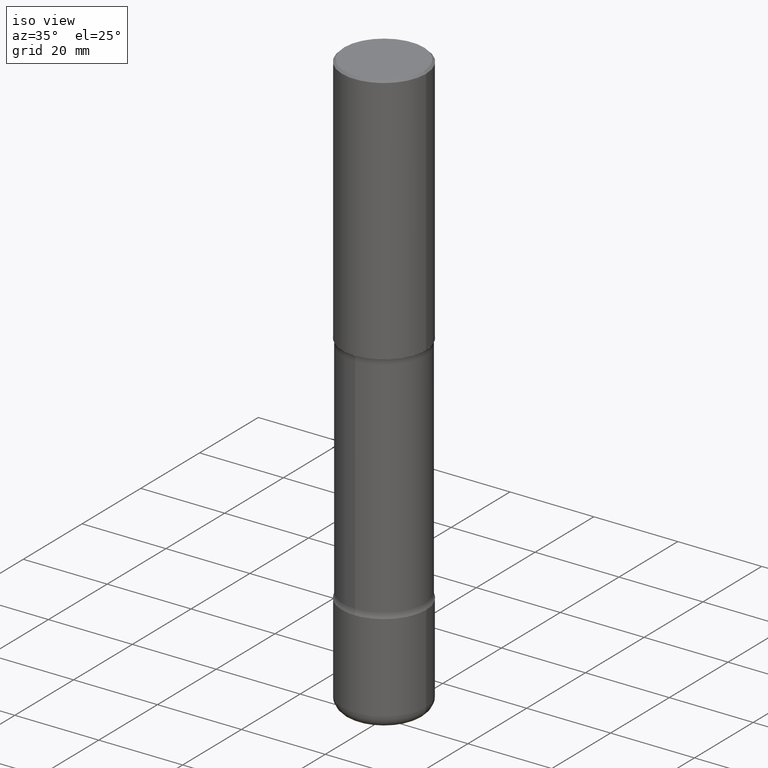
[diagram: clean part render]
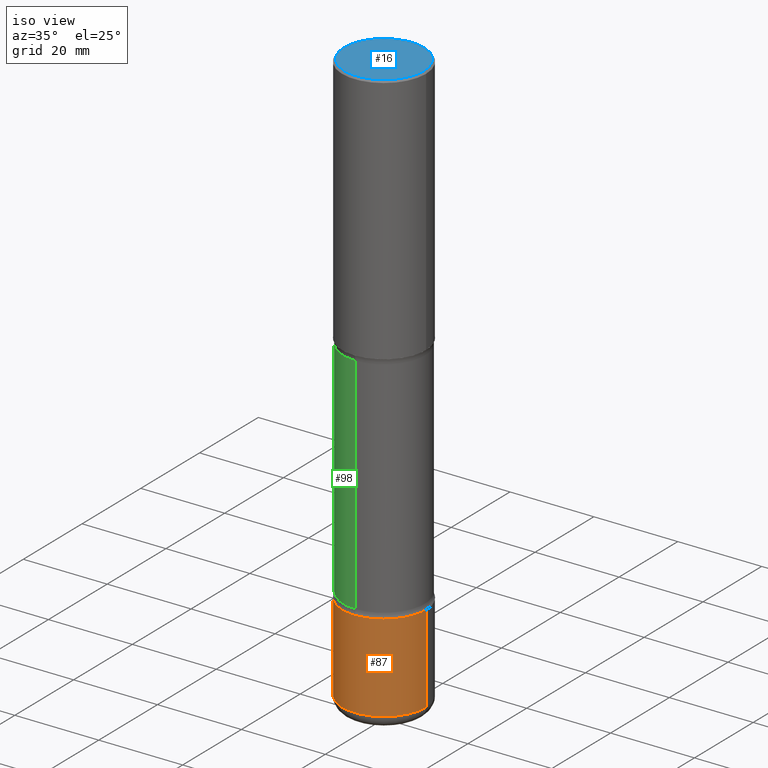
[diagram: same view with three faces highlighted in distinct colors, each labeled with its STEP entity id]
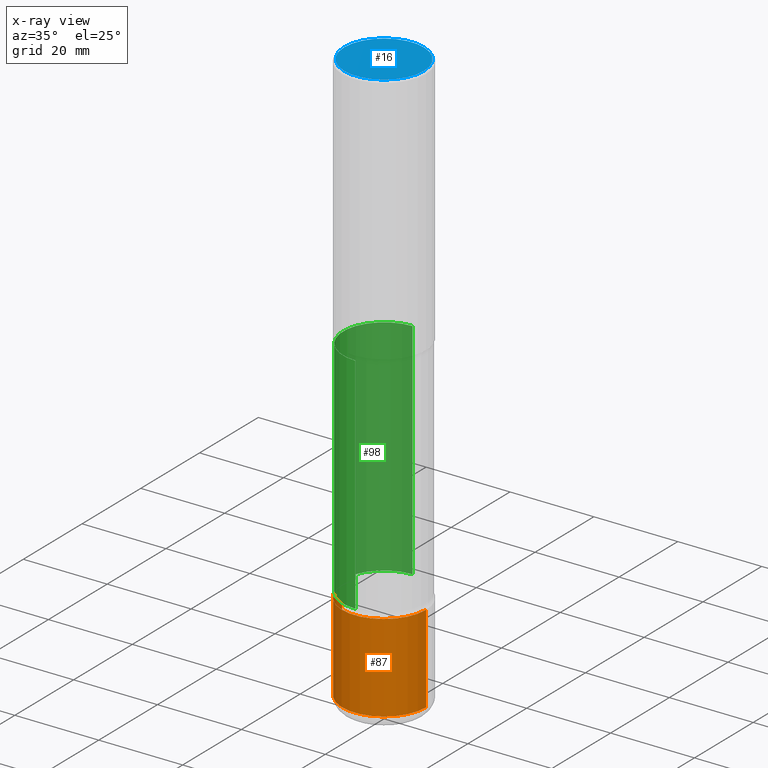
[diagram: x-ray of the same camera — body ghosted, the three highlighted faces saturated]
A machine part, iso view with three faces highlighted in distinct colors.
The next image is the same camera in x-ray (body ghosted, the three faces saturated) — at least one of them is partly hidden behind the body in this view.
Their STEP definitions:

[orange] entity #87 — the highlighted cylindrical surface (partial cylindrical patch) has radius 10 mm, axis along (-0, 0, 1).
#22 = DIRECTION ( 'NONE',  ( -2.445468806185136597E-29, 3.491481338843145583E-15, 1.000000000000000000 ) ) ;
#47 = EDGE_CURVE ( 'NONE', #389, #89, #425, .T. ) ;
#64 = DIRECTION ( 'NONE',  ( 1.000000000000000000, -6.982962677686269866E-15, 0.000000000000000000 ) ) ;
#68 = DIRECTION ( 'NONE',  ( -2.445468806185136877E-29, 3.491481338843145188E-15, 1.000000000000000000 ) ) ;
#74 = CARTESIAN_POINT ( 'NONE',  ( 0.3937000000000002164, -2.158119530352336260E-14, -5.393700000000000827 ) ) ;
#87 = ADVANCED_FACE ( 'NONE', ( #359 ), #123, .T. ) ;
#89 = VERTEX_POINT ( 'NONE', #454 ) ;
#95 = CARTESIAN_POINT ( 'NONE',  ( 1.319012509992077371E-28, -1.883200289731827938E-14, -5.393700000000000827 ) ) ;
#107 = CARTESIAN_POINT ( 'NONE',  ( 0.000000000000000000, 0.000000000000000000, 0.000000000000000000 ) ) ;
#112 = VERTEX_POINT ( 'NONE', #74 ) ;
#123 = CYLINDRICAL_SURFACE ( 'NONE', #184, 0.3937000000000004385 ) ;
#126 = EDGE_CURVE ( 'NONE', #112, #89, #552, .T. ) ;
#132 = ORIENTED_EDGE ( 'NONE', *, *, #229, .F. ) ;
#135 = DIRECTION ( 'NONE',  ( -2.445468806185136597E-29, 3.491481338843145583E-15, 1.000000000000000000 ) ) ;
#153 = VECTOR ( 'NONE', #294, 39.37007874015748143 ) ;
#157 = EDGE_LOOP ( 'NONE', ( #132, #312, #212, #370 ) ) ;
#170 = VERTEX_POINT ( 'NONE', #196 ) ;
#184 = AXIS2_PLACEMENT_3D ( 'NONE', #107, #22, #202 ) ;
#196 = CARTESIAN_POINT ( 'NONE',  ( -0.3937000000000002164, -1.603459614663076223E-14, -5.393700000000000827 ) ) ;
#202 = DIRECTION ( 'NONE',  ( 1.000000000000000000, -6.982962677686266711E-15, 4.876176775795935793E-29 ) ) ;
#212 = ORIENTED_EDGE ( 'NONE', *, *, #126, .T. ) ;
#215 = CIRCLE ( 'NONE', #537, 0.3937000000000004940 ) ;
#229 = EDGE_CURVE ( 'NONE', #170, #389, #337, .T. ) ;
#241 = CARTESIAN_POINT ( 'NONE',  ( 1.116821149096690103E-28, -1.594524612636276117E-14, -4.566900000000000404 ) ) ;
#276 = DIRECTION ( 'NONE',  ( 1.000000000000000000, -6.982962677686261977E-15, 0.000000000000000000 ) ) ;
#281 = DIRECTION ( 'NONE',  ( -2.445468806185136597E-29, 3.491481338843145583E-15, 1.000000000000000000 ) ) ;
#282 = CARTESIAN_POINT ( 'NONE',  ( 0.3937000000000004385, -2.749192406205086372E-15, 1.919750796630862133E-29 ) ) ;
#294 = DIRECTION ( 'NONE',  ( -2.445468806185136877E-29, 3.491481338843145188E-15, 1.000000000000000000 ) ) ;
#312 = ORIENTED_EDGE ( 'NONE', *, *, #315, .T. ) ;
#315 = EDGE_CURVE ( 'NONE', #170, #112, #215, .T. ) ;
#337 = LINE ( 'NONE', #394, #153 ) ;
#359 = FACE_OUTER_BOUND ( 'NONE', #157, .T. ) ;
#370 = ORIENTED_EDGE ( 'NONE', *, *, #47, .F. ) ;
#379 = VECTOR ( 'NONE', #68, 39.37007874015748143 ) ;
#389 = VERTEX_POINT ( 'NONE', #531 ) ;
#390 = AXIS2_PLACEMENT_3D ( 'NONE', #241, #281, #276 ) ;
#394 = CARTESIAN_POINT ( 'NONE',  ( -0.3937000000000004385, 2.797406750687517547E-15, -1.936584745033358417E-29 ) ) ;
#425 = CIRCLE ( 'NONE', #390, 0.3937000000000003830 ) ;
#454 = CARTESIAN_POINT ( 'NONE',  ( 0.3937000000000003830, -1.869443853256784755E-14, -4.566900000000000404 ) ) ;
#531 = CARTESIAN_POINT ( 'NONE',  ( -0.3937000000000003830, -1.459121776115300155E-14, -4.566900000000000404 ) ) ;
#537 = AXIS2_PLACEMENT_3D ( 'NONE', #95, #135, #64 ) ;
#552 = LINE ( 'NONE', #282, #379 ) ;

[blue] entity #16 — the highlighted planar face has unit normal (0, -0, -1).
#16 = ADVANCED_FACE ( 'NONE', ( #344 ), #257, .F. ) ;
#31 = CARTESIAN_POINT ( 'NONE',  ( 0.3736999999999999766, -2.667287895133368359E-15, 8.537024980219259100E-18 ) ) ;
#36 = EDGE_CURVE ( 'NONE', #458, #201, #227, .T. ) ;
#45 = CARTESIAN_POINT ( 'NONE',  ( 2.609533152651357409E-15, 0.3736999999999999766, -1.300498063835583011E-15 ) ) ;
#72 = AXIS2_PLACEMENT_3D ( 'NONE', #45, #125, #521 ) ;
#105 = DIRECTION ( 'NONE',  ( -2.445468806185136597E-29, 3.491481338843145583E-15, 1.000000000000000000 ) ) ;
#125 = DIRECTION ( 'NONE',  ( 2.438088387897960049E-29, -3.491481338843145188E-15, -1.000000000000000000 ) ) ;
#201 = VERTEX_POINT ( 'NONE', #428 ) ;
#222 = EDGE_LOOP ( 'NONE', ( #331, #478 ) ) ;
#227 = CIRCLE ( 'NONE', #450, 0.3736999999999999766 ) ;
#257 = PLANE ( 'NONE',  #72 ) ;
#267 = DIRECTION ( 'NONE',  ( -2.445468806185136597E-29, 3.491481338843145583E-15, 1.000000000000000000 ) ) ;
#270 = DIRECTION ( 'NONE',  ( 1.000000000000000000, -6.982962677686266711E-15, 4.876212485538975679E-29 ) ) ;
#331 = ORIENTED_EDGE ( 'NONE', *, *, #369, .T. ) ;
#344 = FACE_OUTER_BOUND ( 'NONE', #222, .T. ) ;
#369 = EDGE_CURVE ( 'NONE', #201, #458, #500, .T. ) ;
#428 = CARTESIAN_POINT ( 'NONE',  ( -0.3736999999999999766, 2.644447966039789058E-15, 8.537024980182435319E-18 ) ) ;
#434 = AXIS2_PLACEMENT_3D ( 'NONE', #437, #267, #270 ) ;
#437 = CARTESIAN_POINT ( 'NONE',  ( -2.087702828670435750E-46, 2.980686340760889474E-32, 8.537024980200807150E-18 ) ) ;
#450 = AXIS2_PLACEMENT_3D ( 'NONE', #495, #105, #545 ) ;
#458 = VERTEX_POINT ( 'NONE', #31 ) ;
#478 = ORIENTED_EDGE ( 'NONE', *, *, #36, .T. ) ;
#495 = CARTESIAN_POINT ( 'NONE',  ( -2.087702828670435750E-46, 2.980686340760889474E-32, 8.537024980200807150E-18 ) ) ;
#500 = CIRCLE ( 'NONE', #434, 0.3736999999999999766 ) ;
#521 = DIRECTION ( 'NONE',  ( -1.000000000000000000, 6.982962677686265922E-15, -4.876176775795935793E-29 ) ) ;
#545 = DIRECTION ( 'NONE',  ( 1.000000000000000000, -6.982962677686266711E-15, 4.876212485538975679E-29 ) ) ;

[green] entity #98 — the highlighted cylindrical surface (partial cylindrical patch) has radius 9.7409 mm, axis along (0, -0, -1).
#21 = AXIS2_PLACEMENT_3D ( 'NONE', #525, #493, #484 ) ;
#67 = CARTESIAN_POINT ( 'NONE',  ( 1.104255145972444542E-28, -1.577932180213095535E-14, -4.517443352317408234 ) ) ;
#69 = VERTEX_POINT ( 'NONE', #468 ) ;
#98 = ADVANCED_FACE ( 'NONE', ( #410 ), #413, .T. ) ;
#110 = EDGE_CURVE ( 'NONE', #214, #378, #517, .T. ) ;
#142 = VERTEX_POINT ( 'NONE', #453 ) ;
#146 = VECTOR ( 'NONE', #515, 39.37007874015748143 ) ;
#161 = AXIS2_PLACEMENT_3D ( 'NONE', #422, #464, #193 ) ;
#193 = DIRECTION ( 'NONE',  ( 6.982962677686265133E-15, 1.000000000000000000, -2.849385130288669478E-15 ) ) ;
#205 = LINE ( 'NONE', #470, #146 ) ;
#211 = CARTESIAN_POINT ( 'NONE',  ( -2.631000982145247058E-15, -0.3835000000000192699, -5.511799999999999145 ) ) ;
#214 = VERTEX_POINT ( 'NONE', #346 ) ;
#216 = EDGE_CURVE ( 'NONE', #69, #378, #205, .T. ) ;
#219 = VECTOR ( 'NONE', #427, 39.37007874015748143 ) ;
#238 = DIRECTION ( 'NONE',  ( 6.982962677686265133E-15, 1.000000000000000000, -2.849385130288669478E-15 ) ) ;
#300 = ORIENTED_EDGE ( 'NONE', *, *, #549, .F. ) ;
#302 = ORIENTED_EDGE ( 'NONE', *, *, #326, .T. ) ;
#310 = CARTESIAN_POINT ( 'NONE',  ( 2.677966186892794339E-15, 0.3834999999999843534, -4.517443352317409122 ) ) ;
#325 = EDGE_LOOP ( 'NONE', ( #300, #302, #423, #414 ) ) ;
#326 = EDGE_CURVE ( 'NONE', #142, #69, #506, .T. ) ;
#346 = CARTESIAN_POINT ( 'NONE',  ( -2.665989521933907346E-15, -0.3835000000000159392, -4.517443352317407346 ) ) ;
#378 = VERTEX_POINT ( 'NONE', #310 ) ;
#392 = LINE ( 'NONE', #211, #219 ) ;
#410 = FACE_OUTER_BOUND ( 'NONE', #325, .T. ) ;
#413 = CYLINDRICAL_SURFACE ( 'NONE', #161, 0.3835000000000001741 ) ;
#414 = ORIENTED_EDGE ( 'NONE', *, *, #110, .F. ) ;
#422 = CARTESIAN_POINT ( 'NONE',  ( 1.356902450771305887E-28, -1.911533349202580181E-14, -5.511800000000000033 ) ) ;
#423 = ORIENTED_EDGE ( 'NONE', *, *, #216, .T. ) ;
#427 = DIRECTION ( 'NONE',  ( 2.540811743831259279E-29, -3.354944825550891508E-15, -1.000000000000000000 ) ) ;
#453 = CARTESIAN_POINT ( 'NONE',  ( -2.665989521933963355E-15, -0.3835000000000089448, -2.411656647682590915 ) ) ;
#464 = DIRECTION ( 'NONE',  ( 2.540811743831259279E-29, -3.354944825550891508E-15, -1.000000000000000000 ) ) ;
#468 = CARTESIAN_POINT ( 'NONE',  ( 2.677966186892741091E-15, 0.3834999999999914588, -2.411656647682594024 ) ) ;
#470 = CARTESIAN_POINT ( 'NONE',  ( 2.677966186892819583E-15, 0.3834999999999810227, -5.511800000000000921 ) ) ;
#484 = DIRECTION ( 'NONE',  ( 6.982962677686265133E-15, 1.000000000000000000, -3.561731412860836552E-15 ) ) ;
#493 = DIRECTION ( 'NONE',  ( 2.540811743831259279E-29, -3.354944825550891508E-15, -1.000000000000000000 ) ) ;
#506 = CIRCLE ( 'NONE', #21, 0.3835000000000002296 ) ;
#515 = DIRECTION ( 'NONE',  ( 2.540811743831259279E-29, -3.354944825550891508E-15, -1.000000000000000000 ) ) ;
#517 = CIRCLE ( 'NONE', #546, 0.3835000000000001741 ) ;
#525 = CARTESIAN_POINT ( 'NONE',  ( 5.692143870584579365E-29, -8.714523593702518262E-15, -2.411656647682592247 ) ) ;
#541 = DIRECTION ( 'NONE',  ( 2.540811743831259279E-29, -3.354944825550891508E-15, -1.000000000000000000 ) ) ;
#546 = AXIS2_PLACEMENT_3D ( 'NONE', #67, #541, #238 ) ;
#549 = EDGE_CURVE ( 'NONE', #142, #214, #392, .T. ) ;